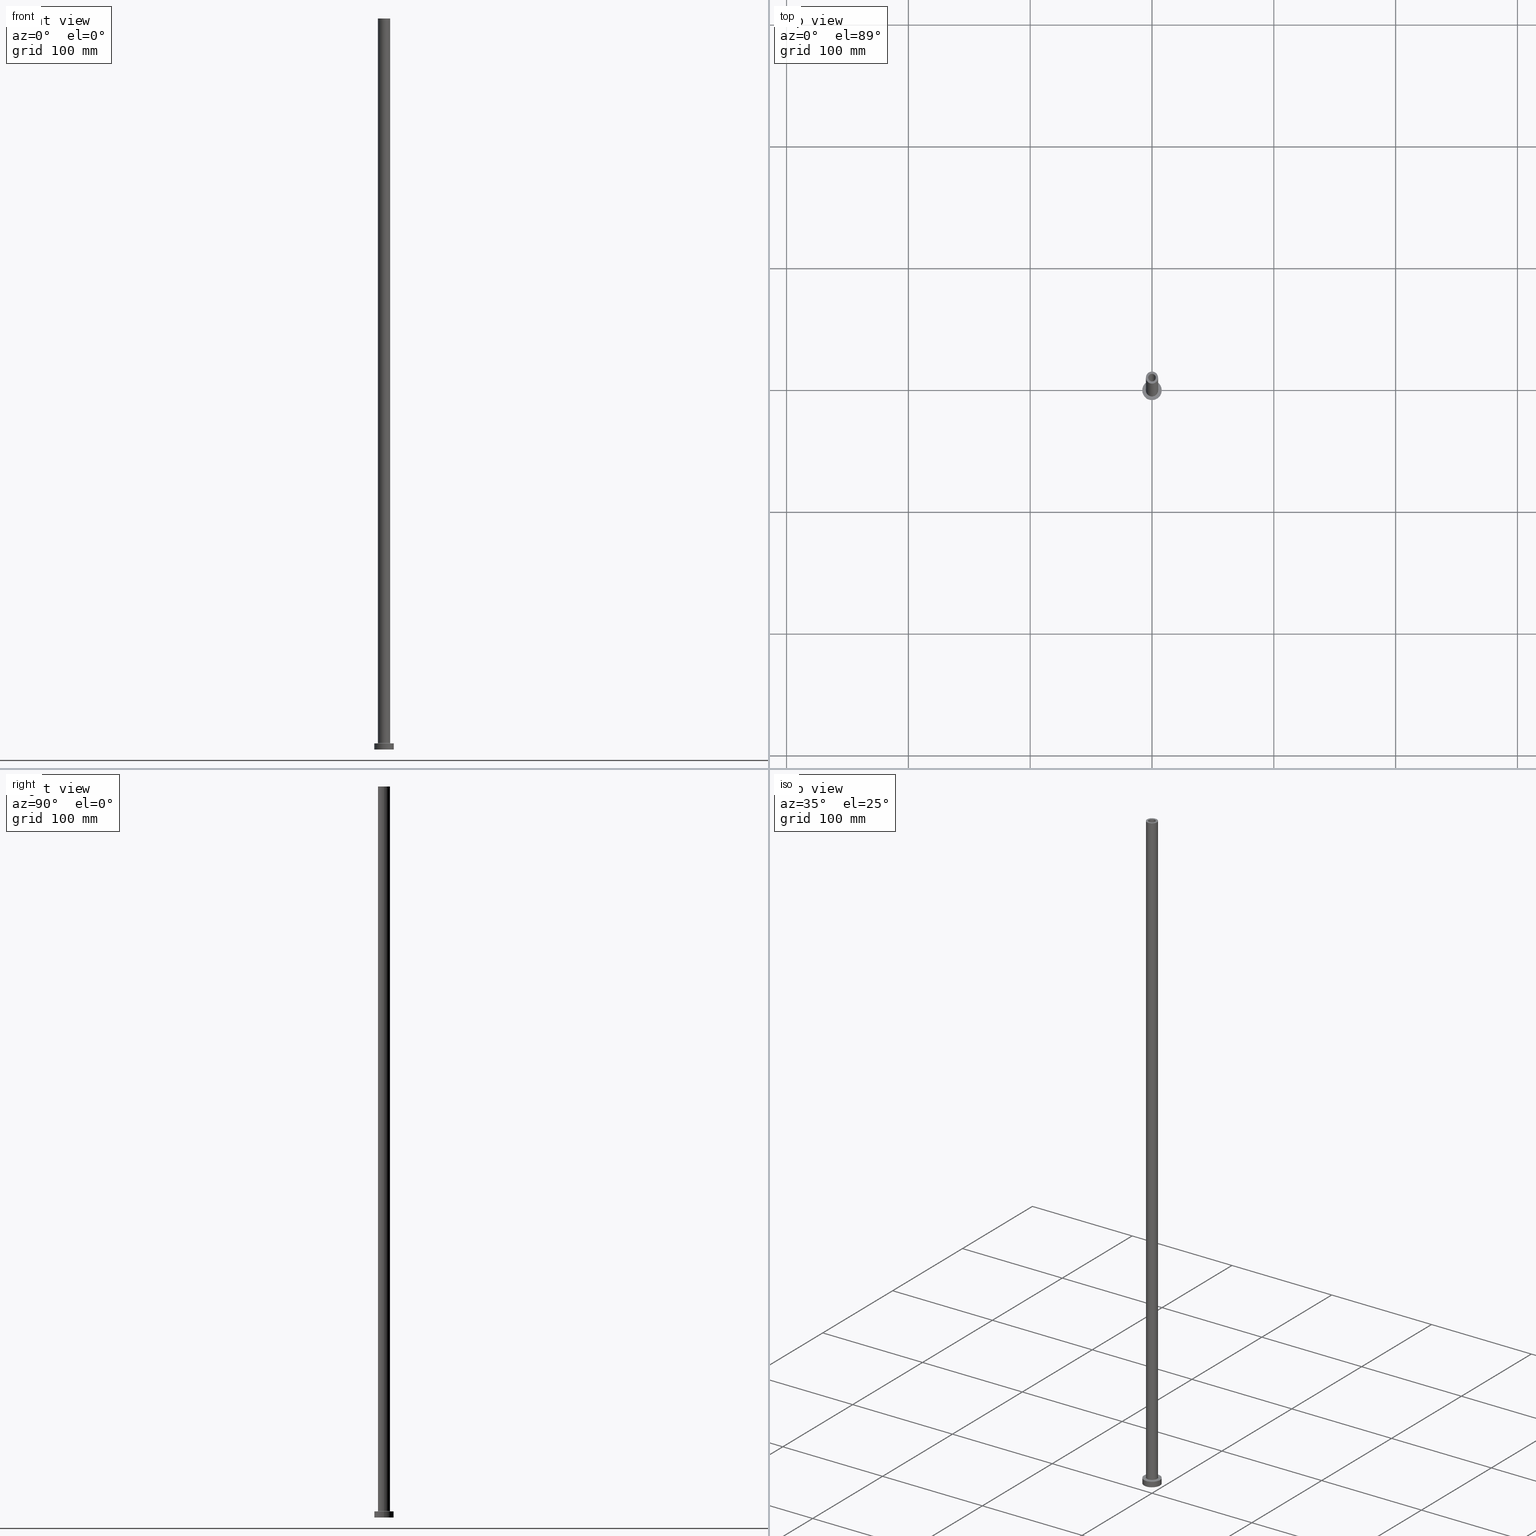
[diagram: canonical four-view strip — front | top / right | iso, engineering-drawing reading convention]
A machine part, canonical four-view strip (front | top / right | iso — engineering-drawing reading convention). The complete STEP part file that produces these views, byte-faithful:
ISO-10303-21;
HEADER;
FILE_DESCRIPTION (( 'STEP AP203' ),
    '1' );
FILE_NAME ('ffa9.STEP',
    '2023-02-13T14:29:43',
    ( '' ),
    ( '' ),
    'SwSTEP 2.0',
    'SolidWorks 2019',
    '' );
FILE_SCHEMA (( 'CONFIG_CONTROL_DESIGN' ));
ENDSEC;

DATA;
#1 = PLANE ( 'NONE',  #323 ) ;
#2 = DIRECTION ( 'NONE',  ( 1.000000000000000000, 0.000000000000000000, 0.000000000000000000 ) ) ;
#3 = EDGE_CURVE ( 'NONE', #375, #200, #195, .T. ) ;
#4 = DIRECTION ( 'NONE',  ( 0.000000000000000000, 0.000000000000000000, 1.000000000000000000 ) ) ;
#5 = FACE_OUTER_BOUND ( 'NONE', #307, .T. ) ;
#6 = AXIS2_PLACEMENT_3D ( 'NONE', #21, #365, #148 ) ;
#7 = DIRECTION ( 'NONE',  ( 0.000000000000000000, 0.000000000000000000, 1.000000000000000000 ) ) ;
#8 = EDGE_CURVE ( 'NONE', #315, #119, #413, .T. ) ;
#9 = DIRECTION ( 'NONE',  ( 1.000000000000000000, 0.000000000000000000, 0.000000000000000000 ) ) ;
#10 = DIRECTION ( 'NONE',  ( 1.000000000000000000, 0.000000000000000000, 0.000000000000000000 ) ) ;
#11 = CARTESIAN_POINT ( 'NONE',  ( 0.000000000000000000, 0.000000000000000000, 5.000000000000000000 ) ) ;
#12 =( NAMED_UNIT ( * ) SI_UNIT ( $, .STERADIAN. ) SOLID_ANGLE_UNIT ( ) );
#13 = DIRECTION ( 'NONE',  ( 0.000000000000000000, 0.000000000000000000, 1.000000000000000000 ) ) ;
#14 = ORIENTED_EDGE ( 'NONE', *, *, #293, .T. ) ;
#15 = DIRECTION ( 'NONE',  ( -1.000000000000000000, 0.000000000000000000, 0.000000000000000000 ) ) ;
#16 = APPLICATION_PROTOCOL_DEFINITION ( 'international standard', 'config_control_design', 1994, #240 ) ;
#17 = EDGE_CURVE ( 'NONE', #339, #207, #354, .T. ) ;
#18 = DIRECTION ( 'NONE',  ( 0.000000000000000000, 0.000000000000000000, -1.000000000000000000 ) ) ;
#19 = DIRECTION ( 'NONE',  ( 1.000000000000000000, 0.000000000000000000, 0.000000000000000000 ) ) ;
#20 = ORIENTED_EDGE ( 'NONE', *, *, #376, .T. ) ;
#21 = CARTESIAN_POINT ( 'NONE',  ( 0.000000000000000000, 0.000000000000000000, 0.000000000000000000 ) ) ;
#22 = CC_DESIGN_APPROVAL ( #189, ( #217 ) ) ;
#23 = MECHANICAL_CONTEXT ( 'NONE', #259, 'mechanical' ) ;
#24 = CARTESIAN_POINT ( 'NONE',  ( -3.250000000000000444, 0.000000000000000000, 564.1923881554251921 ) ) ;
#25 = APPROVAL ( #342, 'NEUR�EN�' ) ;
#26 = APPROVAL_STATUS ( 'not_yet_approved' ) ;
#27 = AXIS2_PLACEMENT_3D ( 'NONE', #203, #314, #422 ) ;
#28 = ORIENTED_EDGE ( 'NONE', *, *, #301, .F. ) ;
#29 = CARTESIAN_POINT ( 'NONE',  ( -8.000000000000000000, 0.000000000000000000, 5.000000000000000000 ) ) ;
#30 = ORIENTED_EDGE ( 'NONE', *, *, #443, .T. ) ;
#31 = LOCAL_TIME ( 15, 29, 43.00000000000000000, #302 ) ;
#32 = DIRECTION ( 'NONE',  ( -1.000000000000000000, 0.000000000000000000, 0.000000000000000000 ) ) ;
#33 = VERTEX_POINT ( 'NONE', #29 ) ;
#34 = AXIS2_PLACEMENT_3D ( 'NONE', #152, #133, #366 ) ;
#35 = AXIS2_PLACEMENT_3D ( 'NONE', #64, #363, #49 ) ;
#36 = EDGE_CURVE ( 'NONE', #33, #453, #188, .T. ) ;
#37 = PLANE ( 'NONE',  #361 ) ;
#38 = CC_DESIGN_SECURITY_CLASSIFICATION ( #217, ( #367 ) ) ;
#39 = CARTESIAN_POINT ( 'NONE',  ( 0.000000000000000000, 0.000000000000000000, 600.0000000000000000 ) ) ;
#40 = AXIS2_PLACEMENT_3D ( 'NONE', #325, #187, #10 ) ;
#41 = VERTEX_POINT ( 'NONE', #263 ) ;
#42 = LINE ( 'NONE', #180, #294 ) ;
#43 = LINE ( 'NONE', #432, #228 ) ;
#44 = FACE_OUTER_BOUND ( 'NONE', #198, .T. ) ;
#45 = EDGE_CURVE ( 'NONE', #41, #96, #170, .T. ) ;
#46 = AXIS2_PLACEMENT_3D ( 'NONE', #237, #213, #32 ) ;
#47 = DIRECTION ( 'NONE',  ( 0.000000000000000000, 0.000000000000000000, 1.000000000000000000 ) ) ;
#48 = ORIENTED_EDGE ( 'NONE', *, *, #3, .F. ) ;
#49 = DIRECTION ( 'NONE',  ( 1.000000000000000000, 0.000000000000000000, -0.000000000000000000 ) ) ;
#50 = CARTESIAN_POINT ( 'NONE',  ( -3.250000000000000444, 0.000000000000000000, 554.9999999999998863 ) ) ;
#51 = ORIENTED_EDGE ( 'NONE', *, *, #330, .T. ) ;
#52 = CARTESIAN_POINT ( 'NONE',  ( 0.000000000000000000, 0.000000000000000000, 600.0000000000000000 ) ) ;
#53 = APPROVAL_PERSON_ORGANIZATION ( #371, #143, #279 ) ;
#54 = AXIS2_PLACEMENT_3D ( 'NONE', #337, #166, #97 ) ;
#55 = APPROVAL_ROLE ( '' ) ;
#56 = EDGE_CURVE ( 'NONE', #33, #287, #251, .T. ) ;
#57 = EDGE_LOOP ( 'NONE', ( #225, #447, #369, #115 ) ) ;
#58 = AXIS2_PLACEMENT_3D ( 'NONE', #264, #224, #258 ) ;
#59 = COORDINATED_UNIVERSAL_TIME_OFFSET ( 1, 0, .AHEAD. ) ;
#60 = CYLINDRICAL_SURFACE ( 'NONE', #459, 3.100000000000000089 ) ;
#61 = CARTESIAN_POINT ( 'NONE',  ( 0.000000000000000000, 0.000000000000000000, 564.1923881554251921 ) ) ;
#62 = PERSON_AND_ORGANIZATION_ROLE ( 'classification_officer' ) ;
#63 = EDGE_LOOP ( 'NONE', ( #331, #343, #130, #255 ) ) ;
#64 = CARTESIAN_POINT ( 'NONE',  ( 0.000000000000000000, 0.000000000000000000, 600.0000000000000000 ) ) ;
#65 = CC_DESIGN_PERSON_AND_ORGANIZATION_ASSIGNMENT ( #338, #368, ( #140 ) ) ;
#66 = EDGE_LOOP ( 'NONE', ( #417, #174, #176, #396 ) ) ;
#67 = DATE_TIME_ROLE ( 'classification_date' ) ;
#68 = EDGE_LOOP ( 'NONE', ( #89, #71 ) ) ;
#69 = DIRECTION ( 'NONE',  ( -1.000000000000000000, 0.000000000000000000, 0.000000000000000000 ) ) ;
#70 = EDGE_LOOP ( 'NONE', ( #349, #20, #51, #48 ) ) ;
#71 = ORIENTED_EDGE ( 'NONE', *, *, #268, .T. ) ;
#72 = CC_DESIGN_PERSON_AND_ORGANIZATION_ASSIGNMENT ( #271, #407, ( #367 ) ) ;
#73 = DIRECTION ( 'NONE',  ( 0.000000000000000000, 0.000000000000000000, -1.000000000000000000 ) ) ;
#74 = FACE_OUTER_BOUND ( 'NONE', #108, .T. ) ;
#75 = FACE_BOUND ( 'NONE', #277, .T. ) ;
#76 = EDGE_LOOP ( 'NONE', ( #227, #30 ) ) ;
#77 = FACE_OUTER_BOUND ( 'NONE', #105, .T. ) ;
#78 = ORIENTED_EDGE ( 'NONE', *, *, #385, .F. ) ;
#79 = CARTESIAN_POINT ( 'NONE',  ( 0.000000000000000000, 0.000000000000000000, 5.000000000000000000 ) ) ;
#80 = EDGE_CURVE ( 'NONE', #315, #378, #340, .T. ) ;
#81 = AXIS2_PLACEMENT_3D ( 'NONE', #39, #146, #425 ) ;
#82 = DIRECTION ( 'NONE',  ( 1.000000000000000000, 0.000000000000000000, -0.000000000000000000 ) ) ;
#83 = DIRECTION ( 'NONE',  ( 1.000000000000000000, 0.000000000000000000, 0.000000000000000000 ) ) ;
#84 = PLANE ( 'NONE',  #35 ) ;
#85 = DIRECTION ( 'NONE',  ( 0.000000000000000000, 0.000000000000000000, -1.000000000000000000 ) ) ;
#86 = EDGE_CURVE ( 'NONE', #96, #41, #406, .T. ) ;
#87 = CYLINDRICAL_SURFACE ( 'NONE', #449, 8.000000000000000000 ) ;
#88 = CYLINDRICAL_SURFACE ( 'NONE', #116, 5.000000000000000000 ) ;
#89 = ORIENTED_EDGE ( 'NONE', *, *, #17, .T. ) ;
#90 = EDGE_CURVE ( 'NONE', #207, #41, #43, .T. ) ;
#91 = CARTESIAN_POINT ( 'NONE',  ( 0.000000000000000000, 0.000000000000000000, 0.000000000000000000 ) ) ;
#92 = CARTESIAN_POINT ( 'NONE',  ( -3.100000000000000089, 0.000000000000000000, 600.0000000000000000 ) ) ;
#93 = ORIENTED_EDGE ( 'NONE', *, *, #358, .F. ) ;
#94 = DIRECTION ( 'NONE',  ( 1.000000000000000000, 0.000000000000000000, 0.000000000000000000 ) ) ;
#95 = PERSON_AND_ORGANIZATION ( #398, #177 ) ;
#96 = VERTEX_POINT ( 'NONE', #297 ) ;
#97 = DIRECTION ( 'NONE',  ( 1.000000000000000000, 0.000000000000000000, 0.000000000000000000 ) ) ;
#98 = CIRCLE ( 'NONE', #238, 5.500000000000000000 ) ;
#99 = COORDINATED_UNIVERSAL_TIME_OFFSET ( 1, 0, .AHEAD. ) ;
#100 = EDGE_CURVE ( 'NONE', #153, #375, #144, .T. ) ;
#101 = CARTESIAN_POINT ( 'NONE',  ( 3.100000000000000089, 3.796405077356794918E-16, 554.9999999999998863 ) ) ;
#102 = CARTESIAN_POINT ( 'NONE',  ( 0.000000000000000000, 0.000000000000000000, 600.0000000000000000 ) ) ;
#103 = DIRECTION ( 'NONE',  ( 0.000000000000000000, 0.000000000000000000, 1.000000000000000000 ) ) ;
#104 = CALENDAR_DATE ( 2023, 13, 2 ) ;
#105 = EDGE_LOOP ( 'NONE', ( #435, #142 ) ) ;
#106 = VECTOR ( 'NONE', #18, 1000.000000000000000 ) ;
#107 = AXIS2_PLACEMENT_3D ( 'NONE', #61, #333, #220 ) ;
#108 = EDGE_LOOP ( 'NONE', ( #267, #165 ) ) ;
#109 = CC_DESIGN_PERSON_AND_ORGANIZATION_ASSIGNMENT ( #452, #445, ( #367 ) ) ;
#110 = ORIENTED_EDGE ( 'NONE', *, *, #308, .T. ) ;
#111 = LOCAL_TIME ( 15, 29, 43.00000000000000000, #374 ) ;
#112 = EDGE_LOOP ( 'NONE', ( #233, #311 ) ) ;
#113 = VECTOR ( 'NONE', #450, 1000.000000000000000 ) ;
#114 = DIRECTION ( 'NONE',  ( 1.000000000000000000, 0.000000000000000000, 0.000000000000000000 ) ) ;
#115 = ORIENTED_EDGE ( 'NONE', *, *, #284, .F. ) ;
#116 = AXIS2_PLACEMENT_3D ( 'NONE', #52, #332, #15 ) ;
#117 = EDGE_CURVE ( 'NONE', #96, #405, #379, .T. ) ;
#118 = DIRECTION ( 'NONE',  ( 0.000000000000000000, 0.000000000000000000, 1.000000000000000000 ) ) ;
#119 = VERTEX_POINT ( 'NONE', #101 ) ;
#120 = DIRECTION ( 'NONE',  ( 0.000000000000000000, 0.000000000000000000, 1.000000000000000000 ) ) ;
#121 = CARTESIAN_POINT ( 'NONE',  ( -8.000000000000000000, 0.000000000000000000, 5.000000000000000000 ) ) ;
#122 = ADVANCED_FACE ( 'NONE', ( #234 ), #451, .T. ) ;
#123 = FACE_BOUND ( 'NONE', #112, .T. ) ;
#124 = DIRECTION ( 'NONE',  ( 0.000000000000000000, 0.000000000000000000, 1.000000000000000000 ) ) ;
#125 = DIRECTION ( 'NONE',  ( 0.000000000000000000, 0.000000000000000000, 1.000000000000000000 ) ) ;
#126 = EDGE_LOOP ( 'NONE', ( #250, #205 ) ) ;
#127 = AXIS2_PLACEMENT_3D ( 'NONE', #442, #304, #399 ) ;
#128 = ORIENTED_EDGE ( 'NONE', *, *, #100, .T. ) ;
#129 = DIRECTION ( 'NONE',  ( 1.000000000000000000, 0.000000000000000000, 0.000000000000000000 ) ) ;
#130 = ORIENTED_EDGE ( 'NONE', *, *, #45, .T. ) ;
#131 = CARTESIAN_POINT ( 'NONE',  ( 0.000000000000000000, 0.000000000000000000, 0.000000000000000000 ) ) ;
#132 = ORIENTED_EDGE ( 'NONE', *, *, #350, .T. ) ;
#133 = DIRECTION ( 'NONE',  ( 0.000000000000000000, 0.000000000000000000, 1.000000000000000000 ) ) ;
#134 = CALENDAR_DATE ( 2023, 13, 2 ) ;
#135 = CIRCLE ( 'NONE', #27, 5.500000000000000000 ) ;
#136 = APPROVAL_DATE_TIME ( #137, #189 ) ;
#137 = DATE_AND_TIME ( #334, #444 ) ;
#138 = ORIENTED_EDGE ( 'NONE', *, *, #230, .F. ) ;
#139 = PERSON_AND_ORGANIZATION ( #398, #177 ) ;
#140 = PRODUCT_DEFINITION ( 'NEZN�M�', '', #367, #419 ) ;
#141 = ORIENTED_EDGE ( 'NONE', *, *, #434, .F. ) ;
#142 = ORIENTED_EDGE ( 'NONE', *, *, #100, .F. ) ;
#143 = APPROVAL ( #26, 'NEUR�EN�' ) ;
#144 = CIRCLE ( 'NONE', #34, 3.250000000000000444 ) ;
#145 = ORIENTED_EDGE ( 'NONE', *, *, #36, .F. ) ;
#146 = DIRECTION ( 'NONE',  ( 0.000000000000000000, 0.000000000000000000, 1.000000000000000000 ) ) ;
#147 = EDGE_LOOP ( 'NONE', ( #383, #128, #286, #370 ) ) ;
#148 = DIRECTION ( 'NONE',  ( 1.000000000000000000, 0.000000000000000000, 0.000000000000000000 ) ) ;
#149 = AXIS2_PLACEMENT_3D ( 'NONE', #402, #292, #172 ) ;
#150 = ADVANCED_FACE ( 'NONE', ( #204 ), #299, .F. ) ;
#151 = CARTESIAN_POINT ( 'NONE',  ( 0.000000000000000000, 0.000000000000000000, 600.0000000000000000 ) ) ;
#152 = CARTESIAN_POINT ( 'NONE',  ( 0.000000000000000000, 0.000000000000000000, 554.9999999999998863 ) ) ;
#153 = VERTEX_POINT ( 'NONE', #460 ) ;
#154 = CARTESIAN_POINT ( 'NONE',  ( 3.100000000000000089, 3.796405077356794918E-16, 600.0000000000000000 ) ) ;
#155 = ADVANCED_FACE ( 'NONE', ( #75, #221 ), #403, .F. ) ;
#156 = AXIS2_PLACEMENT_3D ( 'NONE', #321, #4, #362 ) ;
#157 = CARTESIAN_POINT ( 'NONE',  ( 0.000000000000000000, 0.000000000000000000, 600.0000000000000000 ) ) ;
#158 = DIRECTION ( 'NONE',  ( -0.000000000000000000, -0.000000000000000000, -1.000000000000000000 ) ) ;
#159 = CARTESIAN_POINT ( 'NONE',  ( -3.100000000000000089, 0.000000000000000000, 554.9999999999998863 ) ) ;
#160 = MANIFOLD_SOLID_BREP ( 'Odebrat vysunut�m4', #456 ) ;
#161 = ORIENTED_EDGE ( 'NONE', *, *, #330, .F. ) ;
#162 = FACE_OUTER_BOUND ( 'NONE', #147, .T. ) ;
#163 = CIRCLE ( 'NONE', #418, 0.5000000000000004441 ) ;
#164 = COORDINATED_UNIVERSAL_TIME_OFFSET ( 1, 0, .AHEAD. ) ;
#165 = ORIENTED_EDGE ( 'NONE', *, *, #230, .T. ) ;
#166 = DIRECTION ( 'NONE',  ( 0.000000000000000000, 0.000000000000000000, 1.000000000000000000 ) ) ;
#167 = APPROVAL_ROLE ( '' ) ;
#168 = CIRCLE ( 'NONE', #247, 3.250000000000000444 ) ;
#169 = CC_DESIGN_PERSON_AND_ORGANIZATION_ASSIGNMENT ( #95, #229, ( #182 ) ) ;
#170 = CIRCLE ( 'NONE', #346, 5.000000000000000000 ) ;
#171 = CARTESIAN_POINT ( 'NONE',  ( 3.100000000000000089, 3.796405077356794918E-16, 600.0000000000000000 ) ) ;
#172 = DIRECTION ( 'NONE',  ( -1.000000000000000000, 1.224646799147351482E-16, 0.000000000000000000 ) ) ;
#173 = DATE_AND_TIME ( #455, #426 ) ;
#174 = ORIENTED_EDGE ( 'NONE', *, *, #80, .T. ) ;
#175 = ADVANCED_FACE ( 'NONE', ( #123, #257 ), #84, .T. ) ;
#176 = ORIENTED_EDGE ( 'NONE', *, *, #434, .T. ) ;
#177 = ORGANIZATION ( 'NEUR�EN�', 'NEUR�EN�', '' ) ;
#178 = VECTOR ( 'NONE', #360, 1000.000000000000000 ) ;
#179 = ORIENTED_EDGE ( 'NONE', *, *, #90, .F. ) ;
#180 = CARTESIAN_POINT ( 'NONE',  ( -5.000000000000000000, 0.000000000000000000, 600.0000000000000000 ) ) ;
#181 = ADVANCED_FACE ( 'NONE', ( #191 ), #327, .F. ) ;
#182 = PRODUCT ( 'ffa9', 'ffa9', '', ( #23 ) ) ;
#183 = AXIS2_PLACEMENT_3D ( 'NONE', #192, #13, #9 ) ;
#184 = DIRECTION ( 'NONE',  ( 1.000000000000000000, 0.000000000000000000, 0.000000000000000000 ) ) ;
#185 = CARTESIAN_POINT ( 'NONE',  ( 0.000000000000000000, 0.000000000000000000, 5.499999999999949374 ) ) ;
#186 = CARTESIAN_POINT ( 'NONE',  ( 0.000000000000000000, 0.000000000000000000, 554.9999999999998863 ) ) ;
#187 = DIRECTION ( 'NONE',  ( 0.000000000000000000, 0.000000000000000000, 1.000000000000000000 ) ) ;
#188 = LINE ( 'NONE', #121, #296 ) ;
#189 = APPROVAL ( #309, 'NEUR�EN�' ) ;
#190 = CARTESIAN_POINT ( 'NONE',  ( 8.000000000000000000, 9.797174393178825657E-16, 0.000000000000000000 ) ) ;
#191 = FACE_OUTER_BOUND ( 'NONE', #373, .T. ) ;
#192 = CARTESIAN_POINT ( 'NONE',  ( 0.000000000000000000, 0.000000000000000000, 554.9999999999998863 ) ) ;
#193 = APPROVAL_DATE_TIME ( #199, #25 ) ;
#194 = FACE_OUTER_BOUND ( 'NONE', #66, .T. ) ;
#195 = LINE ( 'NONE', #24, #106 ) ;
#196 = CC_DESIGN_PERSON_AND_ORGANIZATION_ASSIGNMENT ( #269, #62, ( #217 ) ) ;
#197 = PERSON_AND_ORGANIZATION ( #398, #177 ) ;
#198 = EDGE_LOOP ( 'NONE', ( #326, #420, #319, #244 ) ) ;
#199 = DATE_AND_TIME ( #448, #111 ) ;
#200 = VERTEX_POINT ( 'NONE', #300 ) ;
#201 = DIRECTION ( 'NONE',  ( 0.000000000000000000, 0.000000000000000000, 1.000000000000000000 ) ) ;
#202 = APPLICATION_PROTOCOL_DEFINITION ( 'international standard', 'config_control_design', 1994, #259 ) ;
#203 = CARTESIAN_POINT ( 'NONE',  ( 0.000000000000000000, 0.000000000000000000, 5.000000000000000000 ) ) ;
#204 = FACE_OUTER_BOUND ( 'NONE', #57, .T. ) ;
#205 = ORIENTED_EDGE ( 'NONE', *, *, #316, .F. ) ;
#206 = AXIS2_PLACEMENT_3D ( 'NONE', #243, #118, #2 ) ;
#207 = VERTEX_POINT ( 'NONE', #265 ) ;
#208 = DIRECTION ( 'NONE',  ( 0.000000000000000000, 0.000000000000000000, 1.000000000000000000 ) ) ;
#209 = AXIS2_PLACEMENT_3D ( 'NONE', #131, #232, #19 ) ;
#210 = ORIENTED_EDGE ( 'NONE', *, *, #17, .F. ) ;
#211 = CARTESIAN_POINT ( 'NONE',  ( 8.000000000000000000, 9.797174393178825657E-16, 5.000000000000000000 ) ) ;
#212 = ADVANCED_FACE ( 'NONE', ( #401 ), #88, .T. ) ;
#213 = DIRECTION ( 'NONE',  ( -0.000000000000000000, -0.000000000000000000, -1.000000000000000000 ) ) ;
#214 = VECTOR ( 'NONE', #404, 1000.000000000000000 ) ;
#215 = DIRECTION ( 'NONE',  ( 0.000000000000000000, 0.000000000000000000, -1.000000000000000000 ) ) ;
#216 = DIRECTION ( 'NONE',  ( 1.000000000000000000, 0.000000000000000000, -0.000000000000000000 ) ) ;
#217 = SECURITY_CLASSIFICATION ( '', '', #416 ) ;
#218 = CARTESIAN_POINT ( 'NONE',  ( 3.250000000000000444, 3.980102097228897245E-16, 564.1923881554251921 ) ) ;
#219 = ADVANCED_FACE ( 'NONE', ( #162 ), #439, .F. ) ;
#220 = DIRECTION ( 'NONE',  ( -1.000000000000000000, 0.000000000000000000, 0.000000000000000000 ) ) ;
#221 = FACE_OUTER_BOUND ( 'NONE', #126, .T. ) ;
#222 = DIRECTION ( 'NONE',  ( -0.000000000000000000, -0.000000000000000000, -1.000000000000000000 ) ) ;
#223 = AXIS2_PLACEMENT_3D ( 'NONE', #421, #73, #69 ) ;
#224 = DIRECTION ( 'NONE',  ( -0.000000000000000000, -0.000000000000000000, -1.000000000000000000 ) ) ;
#225 = ORIENTED_EDGE ( 'NONE', *, *, #117, .F. ) ;
#226 = DATE_AND_TIME ( #104, #31 ) ;
#227 = ORIENTED_EDGE ( 'NONE', *, *, #385, .T. ) ;
#228 = VECTOR ( 'NONE', #158, 1000.000000000000000 ) ;
#229 = PERSON_AND_ORGANIZATION_ROLE ( 'design_owner' ) ;
#230 = EDGE_CURVE ( 'NONE', #287, #33, #391, .T. ) ;
#231 = CARTESIAN_POINT ( 'NONE',  ( 8.000000000000000000, 9.797174393178825657E-16, 5.000000000000000000 ) ) ;
#232 = DIRECTION ( 'NONE',  ( 0.000000000000000000, 0.000000000000000000, 1.000000000000000000 ) ) ;
#233 = ORIENTED_EDGE ( 'NONE', *, *, #350, .F. ) ;
#234 = FACE_OUTER_BOUND ( 'NONE', #351, .T. ) ;
#235 = ADVANCED_FACE ( 'NONE', ( #387, #77 ), #1, .F. ) ;
#236 = DIRECTION ( 'NONE',  ( 1.000000000000000000, 0.000000000000000000, 0.000000000000000000 ) ) ;
#237 = CARTESIAN_POINT ( 'NONE',  ( 0.000000000000000000, 0.000000000000000000, 600.0000000000000000 ) ) ;
#238 = AXIS2_PLACEMENT_3D ( 'NONE', #79, #381, #283 ) ;
#239 = UNCERTAINTY_MEASURE_WITH_UNIT (LENGTH_MEASURE( 1.000000000000000082E-05 ), #291, 'distance_accuracy_value', 'NONE');
#240 = APPLICATION_CONTEXT ( 'configuration controlled 3d designs of mechanical parts and assemblies' ) ;
#241 = CARTESIAN_POINT ( 'NONE',  ( 0.000000000000000000, 0.000000000000000000, 5.000000000000000000 ) ) ;
#242 = LOCAL_TIME ( 15, 29, 43.00000000000000000, #99 ) ;
#243 = CARTESIAN_POINT ( 'NONE',  ( 0.000000000000000000, 0.000000000000000000, 5.499999999999949374 ) ) ;
#244 = ORIENTED_EDGE ( 'NONE', *, *, #364, .F. ) ;
#245 = CIRCLE ( 'NONE', #423, 3.100000000000000089 ) ;
#246 = ADVANCED_FACE ( 'NONE', ( #253, #74 ), #37, .T. ) ;
#247 = AXIS2_PLACEMENT_3D ( 'NONE', #186, #47, #324 ) ;
#248 = CARTESIAN_POINT ( 'NONE',  ( 3.250000000000000444, 3.980102097228897245E-16, 0.000000000000000000 ) ) ;
#249 = ORIENTED_EDGE ( 'NONE', *, *, #86, .T. ) ;
#250 = ORIENTED_EDGE ( 'NONE', *, *, #308, .F. ) ;
#251 = CIRCLE ( 'NONE', #428, 8.000000000000000000 ) ;
#252 = DIRECTION ( 'NONE',  ( -0.000000000000000000, -0.000000000000000000, -1.000000000000000000 ) ) ;
#253 = FACE_BOUND ( 'NONE', #441, .T. ) ;
#254 = CIRCLE ( 'NONE', #317, 3.100000000000000089 ) ;
#255 = ORIENTED_EDGE ( 'NONE', *, *, #427, .F. ) ;
#256 = CARTESIAN_POINT ( 'NONE',  ( 5.500000000000000000, 0.000000000000000000, 5.499999999999949374 ) ) ;
#257 = FACE_OUTER_BOUND ( 'NONE', #68, .T. ) ;
#258 = DIRECTION ( 'NONE',  ( -1.000000000000000000, 0.000000000000000000, 0.000000000000000000 ) ) ;
#259 = APPLICATION_CONTEXT ( 'configuration controlled 3d designs of mechanical parts and assemblies' ) ;
#260 = DIRECTION ( 'NONE',  ( 1.000000000000000000, 0.000000000000000000, 0.000000000000000000 ) ) ;
#261 = ORIENTED_EDGE ( 'NONE', *, *, #8, .T. ) ;
#262 =( NAMED_UNIT ( * ) PLANE_ANGLE_UNIT ( ) SI_UNIT ( $, .RADIAN. ) );
#263 = CARTESIAN_POINT ( 'NONE',  ( 5.000000000000000000, 6.123233995736766282E-16, 5.499999999999949374 ) ) ;
#264 = CARTESIAN_POINT ( 'NONE',  ( 0.000000000000000000, 0.000000000000000000, 5.000000000000000000 ) ) ;
#265 = CARTESIAN_POINT ( 'NONE',  ( 5.000000000000000000, 6.123233995736766282E-16, 600.0000000000000000 ) ) ;
#266 = CARTESIAN_POINT ( 'NONE',  ( 0.000000000000000000, 0.000000000000000000, 0.000000000000000000 ) ) ;
#267 = ORIENTED_EDGE ( 'NONE', *, *, #56, .T. ) ;
#268 = EDGE_CURVE ( 'NONE', #207, #339, #310, .T. ) ;
#269 = PERSON_AND_ORGANIZATION ( #398, #177 ) ;
#270 = VERTEX_POINT ( 'NONE', #248 ) ;
#271 = PERSON_AND_ORGANIZATION ( #398, #177 ) ;
#272 = AXIS2_PLACEMENT_3D ( 'NONE', #282, #208, #114 ) ;
#273 = ORIENTED_EDGE ( 'NONE', *, *, #301, .T. ) ;
#274 = SHAPE_DEFINITION_REPRESENTATION ( #457, #446 ) ;
#275 = CC_DESIGN_DATE_AND_TIME_ASSIGNMENT ( #173, #411, ( #140 ) ) ;
#276 = ORIENTED_EDGE ( 'NONE', *, *, #36, .T. ) ;
#277 = EDGE_LOOP ( 'NONE', ( #93, #161 ) ) ;
#278 = CC_DESIGN_APPROVAL ( #25, ( #367 ) ) ;
#279 = APPROVAL_ROLE ( '' ) ;
#280 = EDGE_LOOP ( 'NONE', ( #28, #414, #276, #110 ) ) ;
#281 = AXIS2_PLACEMENT_3D ( 'NONE', #157, #295, #436 ) ;
#282 = CARTESIAN_POINT ( 'NONE',  ( 0.000000000000000000, 0.000000000000000000, 5.000000000000000000 ) ) ;
#283 = DIRECTION ( 'NONE',  ( 1.000000000000000000, 0.000000000000000000, 0.000000000000000000 ) ) ;
#284 = EDGE_CURVE ( 'NONE', #405, #352, #135, .T. ) ;
#285 = ORIENTED_EDGE ( 'NONE', *, *, #284, .T. ) ;
#286 = ORIENTED_EDGE ( 'NONE', *, *, #3, .T. ) ;
#287 = VERTEX_POINT ( 'NONE', #231 ) ;
#288 = ADVANCED_FACE ( 'NONE', ( #194 ), #60, .F. ) ;
#289 = VECTOR ( 'NONE', #215, 1000.000000000000000 ) ;
#290 = CARTESIAN_POINT ( 'NONE',  ( 0.000000000000000000, 0.000000000000000000, 554.9999999999998863 ) ) ;
#291 =( LENGTH_UNIT ( ) NAMED_UNIT ( * ) SI_UNIT ( .MILLI., .METRE. ) );
#292 = DIRECTION ( 'NONE',  ( 1.224646799147353207E-16, 1.000000000000000000, -0.000000000000000000 ) ) ;
#293 = EDGE_CURVE ( 'NONE', #352, #405, #98, .T. ) ;
#294 = VECTOR ( 'NONE', #392, 1000.000000000000000 ) ;
#295 = DIRECTION ( 'NONE',  ( 0.000000000000000000, 0.000000000000000000, -1.000000000000000000 ) ) ;
#296 = VECTOR ( 'NONE', #252, 1000.000000000000000 ) ;
#297 = CARTESIAN_POINT ( 'NONE',  ( -5.000000000000000000, 0.000000000000000000, 5.499999999999949374 ) ) ;
#298 = CYLINDRICAL_SURFACE ( 'NONE', #58, 8.000000000000000000 ) ;
#299 = TOROIDAL_SURFACE ( 'NONE', #206, 5.500000000000000000, 0.5000000000000000000 ) ;
#300 = CARTESIAN_POINT ( 'NONE',  ( -3.250000000000000444, 0.000000000000000000, 0.000000000000000000 ) ) ;
#301 = EDGE_CURVE ( 'NONE', #287, #458, #424, .T. ) ;
#302 = COORDINATED_UNIVERSAL_TIME_OFFSET ( 1, 0, .AHEAD. ) ;
#303 = CARTESIAN_POINT ( 'NONE',  ( 0.000000000000000000, 0.000000000000000000, 600.0000000000000000 ) ) ;
#304 = DIRECTION ( 'NONE',  ( 0.000000000000000000, 0.000000000000000000, 1.000000000000000000 ) ) ;
#305 = CYLINDRICAL_SURFACE ( 'NONE', #107, 3.250000000000000444 ) ;
#306 = APPROVAL_DATE_TIME ( #312, #143 ) ;
#307 = EDGE_LOOP ( 'NONE', ( #138, #273, #313, #145 ) ) ;
#308 = EDGE_CURVE ( 'NONE', #453, #458, #437, .T. ) ;
#309 = APPROVAL_STATUS ( 'not_yet_approved' ) ;
#310 = CIRCLE ( 'NONE', #81, 5.000000000000000000 ) ;
#311 = ORIENTED_EDGE ( 'NONE', *, *, #80, .F. ) ;
#312 = DATE_AND_TIME ( #134, #242 ) ;
#313 = ORIENTED_EDGE ( 'NONE', *, *, #316, .T. ) ;
#314 = DIRECTION ( 'NONE',  ( -0.000000000000000000, -0.000000000000000000, -1.000000000000000000 ) ) ;
#315 = VERTEX_POINT ( 'NONE', #154 ) ;
#316 = EDGE_CURVE ( 'NONE', #458, #453, #409, .T. ) ;
#317 = AXIS2_PLACEMENT_3D ( 'NONE', #290, #124, #184 ) ;
#318 = DIRECTION ( 'NONE',  ( 0.000000000000000000, 0.000000000000000000, 1.000000000000000000 ) ) ;
#319 = ORIENTED_EDGE ( 'NONE', *, *, #293, .F. ) ;
#320 = CARTESIAN_POINT ( 'NONE',  ( -3.100000000000000089, 0.000000000000000000, 600.0000000000000000 ) ) ;
#321 = CARTESIAN_POINT ( 'NONE',  ( 0.000000000000000000, 0.000000000000000000, 5.499999999999949374 ) ) ;
#322 = ADVANCED_FACE ( 'NONE', ( #348 ), #305, .F. ) ;
#323 = AXIS2_PLACEMENT_3D ( 'NONE', #390, #393, #216 ) ;
#324 = DIRECTION ( 'NONE',  ( 1.000000000000000000, 0.000000000000000000, 0.000000000000000000 ) ) ;
#325 = CARTESIAN_POINT ( 'NONE',  ( 0.000000000000000000, 0.000000000000000000, 0.000000000000000000 ) ) ;
#326 = ORIENTED_EDGE ( 'NONE', *, *, #86, .F. ) ;
#327 = CYLINDRICAL_SURFACE ( 'NONE', #281, 3.100000000000000089 ) ;
#328 =( GEOMETRIC_REPRESENTATION_CONTEXT ( 3 ) GLOBAL_UNCERTAINTY_ASSIGNED_CONTEXT ( ( #239 ) ) GLOBAL_UNIT_ASSIGNED_CONTEXT ( ( #291, #262, #12 ) ) REPRESENTATION_CONTEXT ( 'NONE', 'WORKASPACE' ) );
#329 = DIRECTION ( 'NONE',  ( 0.000000000000000000, -1.000000000000000000, 0.000000000000000000 ) ) ;
#330 = EDGE_CURVE ( 'NONE', #270, #200, #372, .T. ) ;
#331 = ORIENTED_EDGE ( 'NONE', *, *, #268, .F. ) ;
#332 = DIRECTION ( 'NONE',  ( -0.000000000000000000, -0.000000000000000000, -1.000000000000000000 ) ) ;
#333 = DIRECTION ( 'NONE',  ( 0.000000000000000000, 0.000000000000000000, -1.000000000000000000 ) ) ;
#334 = CALENDAR_DATE ( 2023, 13, 2 ) ;
#335 = CIRCLE ( 'NONE', #355, 3.250000000000000444 ) ;
#336 = DIRECTION ( 'NONE',  ( 0.000000000000000000, 0.000000000000000000, -1.000000000000000000 ) ) ;
#337 = CARTESIAN_POINT ( 'NONE',  ( 0.000000000000000000, 0.000000000000000000, 600.0000000000000000 ) ) ;
#338 = PERSON_AND_ORGANIZATION ( #398, #177 ) ;
#339 = VERTEX_POINT ( 'NONE', #400 ) ;
#340 = CIRCLE ( 'NONE', #54, 3.100000000000000089 ) ;
#341 = VERTEX_POINT ( 'NONE', #159 ) ;
#342 = APPROVAL_STATUS ( 'not_yet_approved' ) ;
#343 = ORIENTED_EDGE ( 'NONE', *, *, #90, .T. ) ;
#344 = ADVANCED_FACE ( 'NONE', ( #5 ), #87, .T. ) ;
#345 = DIRECTION ( 'NONE',  ( 1.000000000000000000, 0.000000000000000000, 0.000000000000000000 ) ) ;
#346 = AXIS2_PLACEMENT_3D ( 'NONE', #185, #125, #260 ) ;
#347 = AXIS2_PLACEMENT_3D ( 'NONE', #91, #430, #82 ) ;
#348 = FACE_OUTER_BOUND ( 'NONE', #70, .T. ) ;
#349 = ORIENTED_EDGE ( 'NONE', *, *, #415, .T. ) ;
#350 = EDGE_CURVE ( 'NONE', #378, #315, #245, .T. ) ;
#351 = EDGE_LOOP ( 'NONE', ( #179, #210, #412, #249 ) ) ;
#352 = VERTEX_POINT ( 'NONE', #397 ) ;
#353 = APPROVAL_PERSON_ORGANIZATION ( #197, #189, #55 ) ;
#354 = CIRCLE ( 'NONE', #389, 5.000000000000000000 ) ;
#355 = AXIS2_PLACEMENT_3D ( 'NONE', #266, #222, #83 ) ;
#356 = CARTESIAN_POINT ( 'NONE',  ( -5.500000000000000000, 6.735557395310442023E-16, 4.999999999999975131 ) ) ;
#357 = CARTESIAN_POINT ( 'NONE',  ( -8.000000000000000000, 0.000000000000000000, 0.000000000000000000 ) ) ;
#358 = EDGE_CURVE ( 'NONE', #200, #270, #335, .T. ) ;
#359 = FACE_OUTER_BOUND ( 'NONE', #280, .T. ) ;
#360 = DIRECTION ( 'NONE',  ( -0.000000000000000000, -0.000000000000000000, -1.000000000000000000 ) ) ;
#361 = AXIS2_PLACEMENT_3D ( 'NONE', #241, #318, #382 ) ;
#362 = DIRECTION ( 'NONE',  ( 1.000000000000000000, 0.000000000000000000, 0.000000000000000000 ) ) ;
#363 = DIRECTION ( 'NONE',  ( 0.000000000000000000, 0.000000000000000000, 1.000000000000000000 ) ) ;
#364 = EDGE_CURVE ( 'NONE', #41, #352, #163, .T. ) ;
#365 = DIRECTION ( 'NONE',  ( -0.000000000000000000, -0.000000000000000000, -1.000000000000000000 ) ) ;
#366 = DIRECTION ( 'NONE',  ( 1.000000000000000000, 0.000000000000000000, 0.000000000000000000 ) ) ;
#367 = PRODUCT_DEFINITION_FORMATION_WITH_SPECIFIED_SOURCE ( 'LIBOVOLN�', '', #182, .NOT_KNOWN. ) ;
#368 = PERSON_AND_ORGANIZATION_ROLE ( 'creator' ) ;
#369 = ORIENTED_EDGE ( 'NONE', *, *, #364, .T. ) ;
#370 = ORIENTED_EDGE ( 'NONE', *, *, #358, .T. ) ;
#371 = PERSON_AND_ORGANIZATION ( #398, #177 ) ;
#372 = CIRCLE ( 'NONE', #6, 3.250000000000000444 ) ;
#373 = EDGE_LOOP ( 'NONE', ( #132, #261, #78, #141 ) ) ;
#374 = COORDINATED_UNIVERSAL_TIME_OFFSET ( 1, 0, .AHEAD. ) ;
#375 = VERTEX_POINT ( 'NONE', #50 ) ;
#376 = EDGE_CURVE ( 'NONE', #153, #270, #431, .T. ) ;
#377 = TOROIDAL_SURFACE ( 'NONE', #156, 5.500000000000000000, 0.5000000000000000000 ) ;
#378 = VERTEX_POINT ( 'NONE', #92 ) ;
#379 = CIRCLE ( 'NONE', #149, 0.5000000000000004441 ) ;
#380 = ADVANCED_FACE ( 'NONE', ( #359 ), #298, .T. ) ;
#381 = DIRECTION ( 'NONE',  ( -0.000000000000000000, -0.000000000000000000, -1.000000000000000000 ) ) ;
#382 = DIRECTION ( 'NONE',  ( 1.000000000000000000, 0.000000000000000000, -0.000000000000000000 ) ) ;
#383 = ORIENTED_EDGE ( 'NONE', *, *, #376, .F. ) ;
#384 = CIRCLE ( 'NONE', #183, 3.100000000000000089 ) ;
#385 = EDGE_CURVE ( 'NONE', #341, #119, #254, .T. ) ;
#386 = AXIS2_PLACEMENT_3D ( 'NONE', #410, #103, #345 ) ;
#387 = FACE_BOUND ( 'NONE', #76, .T. ) ;
#388 = CC_DESIGN_APPROVAL ( #143, ( #140 ) ) ;
#389 = AXIS2_PLACEMENT_3D ( 'NONE', #102, #201, #236 ) ;
#390 = CARTESIAN_POINT ( 'NONE',  ( 0.000000000000000000, 0.000000000000000000, 554.9999999999998863 ) ) ;
#391 = CIRCLE ( 'NONE', #272, 8.000000000000000000 ) ;
#392 = DIRECTION ( 'NONE',  ( -0.000000000000000000, -0.000000000000000000, -1.000000000000000000 ) ) ;
#393 = DIRECTION ( 'NONE',  ( 0.000000000000000000, 0.000000000000000000, 1.000000000000000000 ) ) ;
#394 = CARTESIAN_POINT ( 'NONE',  ( 0.000000000000000000, 0.000000000000000000, 5.000000000000000000 ) ) ;
#395 = APPROVAL_PERSON_ORGANIZATION ( #139, #25, #167 ) ;
#396 = ORIENTED_EDGE ( 'NONE', *, *, #443, .F. ) ;
#397 = CARTESIAN_POINT ( 'NONE',  ( 5.500000000000000000, 0.000000000000000000, 4.999999999999975131 ) ) ;
#398 = PERSON ( 'NEUR�EN�', 'NEUR�EN�', 'NEUR�EN�', ('NEUR�EN�'), ('NEUR�EN�'), ('NEUR�EN�') ) ;
#399 = DIRECTION ( 'NONE',  ( 1.000000000000000000, 0.000000000000000000, 0.000000000000000000 ) ) ;
#400 = CARTESIAN_POINT ( 'NONE',  ( -5.000000000000000000, 0.000000000000000000, 600.0000000000000000 ) ) ;
#401 = FACE_OUTER_BOUND ( 'NONE', #63, .T. ) ;
#402 = CARTESIAN_POINT ( 'NONE',  ( -5.500000000000000000, 6.735557395310442023E-16, 5.499999999999949374 ) ) ;
#403 = PLANE ( 'NONE',  #347 ) ;
#404 = DIRECTION ( 'NONE',  ( 0.000000000000000000, 0.000000000000000000, -1.000000000000000000 ) ) ;
#405 = VERTEX_POINT ( 'NONE', #356 ) ;
#406 = CIRCLE ( 'NONE', #127, 5.000000000000000000 ) ;
#407 = PERSON_AND_ORGANIZATION_ROLE ( 'design_supplier' ) ;
#408 = ADVANCED_FACE ( 'NONE', ( #44 ), #377, .F. ) ;
#409 = CIRCLE ( 'NONE', #386, 8.000000000000000000 ) ;
#410 = CARTESIAN_POINT ( 'NONE',  ( 0.000000000000000000, 0.000000000000000000, 0.000000000000000000 ) ) ;
#411 = DATE_TIME_ROLE ( 'creation_date' ) ;
#412 = ORIENTED_EDGE ( 'NONE', *, *, #427, .T. ) ;
#413 = LINE ( 'NONE', #171, #113 ) ;
#414 = ORIENTED_EDGE ( 'NONE', *, *, #56, .F. ) ;
#415 = EDGE_CURVE ( 'NONE', #375, #153, #168, .T. ) ;
#416 = SECURITY_CLASSIFICATION_LEVEL ( 'unclassified' ) ;
#417 = ORIENTED_EDGE ( 'NONE', *, *, #8, .F. ) ;
#418 = AXIS2_PLACEMENT_3D ( 'NONE', #256, #329, #85 ) ;
#419 = DESIGN_CONTEXT ( 'detailed design', #240, 'design' ) ;
#420 = ORIENTED_EDGE ( 'NONE', *, *, #117, .T. ) ;
#421 = CARTESIAN_POINT ( 'NONE',  ( 0.000000000000000000, 0.000000000000000000, 564.1923881554251921 ) ) ;
#422 = DIRECTION ( 'NONE',  ( 1.000000000000000000, 0.000000000000000000, 0.000000000000000000 ) ) ;
#423 = AXIS2_PLACEMENT_3D ( 'NONE', #151, #120, #129 ) ;
#424 = LINE ( 'NONE', #211, #178 ) ;
#425 = DIRECTION ( 'NONE',  ( 1.000000000000000000, 0.000000000000000000, 0.000000000000000000 ) ) ;
#426 = LOCAL_TIME ( 15, 29, 43.00000000000000000, #59 ) ;
#427 = EDGE_CURVE ( 'NONE', #339, #96, #42, .T. ) ;
#428 = AXIS2_PLACEMENT_3D ( 'NONE', #11, #7, #94 ) ;
#429 = LINE ( 'NONE', #320, #289 ) ;
#430 = DIRECTION ( 'NONE',  ( 0.000000000000000000, 0.000000000000000000, 1.000000000000000000 ) ) ;
#431 = LINE ( 'NONE', #218, #214 ) ;
#432 = CARTESIAN_POINT ( 'NONE',  ( 5.000000000000000000, 6.123233995736766282E-16, 600.0000000000000000 ) ) ;
#433 = DIRECTION ( 'NONE',  ( -0.000000000000000000, -0.000000000000000000, -1.000000000000000000 ) ) ;
#434 = EDGE_CURVE ( 'NONE', #378, #341, #429, .T. ) ;
#435 = ORIENTED_EDGE ( 'NONE', *, *, #415, .F. ) ;
#436 = DIRECTION ( 'NONE',  ( -1.000000000000000000, 0.000000000000000000, 0.000000000000000000 ) ) ;
#437 = CIRCLE ( 'NONE', #40, 8.000000000000000000 ) ;
#438 = DIRECTION ( 'NONE',  ( -1.000000000000000000, 0.000000000000000000, 0.000000000000000000 ) ) ;
#439 = CYLINDRICAL_SURFACE ( 'NONE', #223, 3.250000000000000444 ) ;
#440 = DIRECTION ( 'NONE',  ( -1.000000000000000000, 0.000000000000000000, 0.000000000000000000 ) ) ;
#441 = EDGE_LOOP ( 'NONE', ( #14, #285 ) ) ;
#442 = CARTESIAN_POINT ( 'NONE',  ( 0.000000000000000000, 0.000000000000000000, 5.499999999999949374 ) ) ;
#443 = EDGE_CURVE ( 'NONE', #119, #341, #384, .T. ) ;
#444 = LOCAL_TIME ( 15, 29, 43.00000000000000000, #164 ) ;
#445 = PERSON_AND_ORGANIZATION_ROLE ( 'creator' ) ;
#446 = ADVANCED_BREP_SHAPE_REPRESENTATION ( 'ffa9', ( #160, #209 ), #328 ) ;
#447 = ORIENTED_EDGE ( 'NONE', *, *, #45, .F. ) ;
#448 = CALENDAR_DATE ( 2023, 13, 2 ) ;
#449 = AXIS2_PLACEMENT_3D ( 'NONE', #394, #433, #438 ) ;
#450 = DIRECTION ( 'NONE',  ( 0.000000000000000000, 0.000000000000000000, -1.000000000000000000 ) ) ;
#451 = CYLINDRICAL_SURFACE ( 'NONE', #46, 5.000000000000000000 ) ;
#452 = PERSON_AND_ORGANIZATION ( #398, #177 ) ;
#453 = VERTEX_POINT ( 'NONE', #357 ) ;
#454 = PRODUCT_RELATED_PRODUCT_CATEGORY ( 'detail', '', ( #182 ) ) ;
#455 = CALENDAR_DATE ( 2023, 13, 2 ) ;
#456 = CLOSED_SHELL ( 'NONE', ( #181, #322, #408, #212, #344, #380, #246, #155, #122, #175, #150, #219, #235, #288 ) ) ;
#457 = PRODUCT_DEFINITION_SHAPE ( 'NONE', 'NONE',  #140 ) ;
#458 = VERTEX_POINT ( 'NONE', #190 ) ;
#459 = AXIS2_PLACEMENT_3D ( 'NONE', #303, #336, #440 ) ;
#460 = CARTESIAN_POINT ( 'NONE',  ( 3.250000000000000444, 3.980102097228897245E-16, 554.9999999999998863 ) ) ;
#461 = CC_DESIGN_DATE_AND_TIME_ASSIGNMENT ( #226, #67, ( #217 ) ) ;
ENDSEC;
END-ISO-10303-21;
